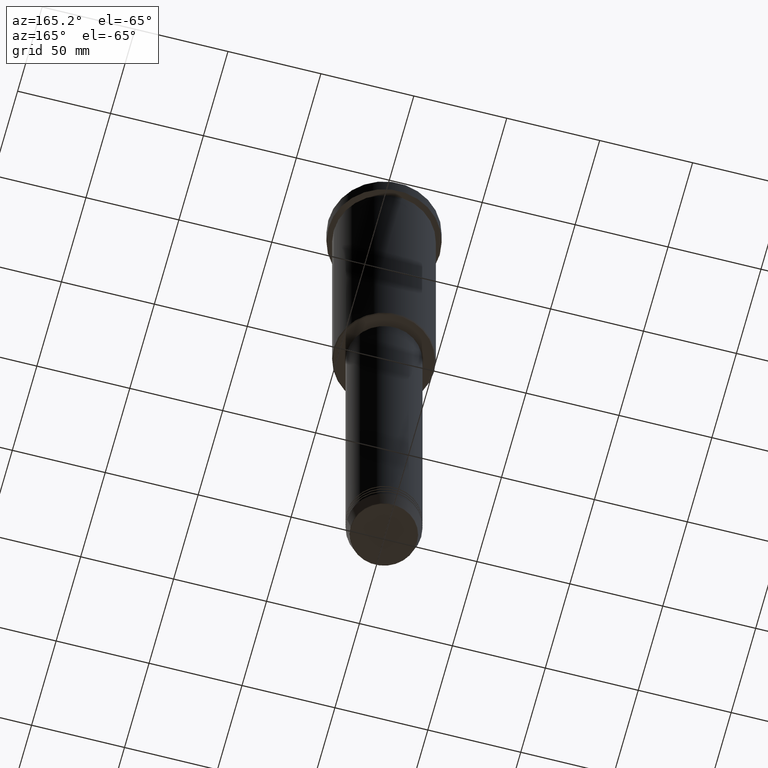
[diagram: clean part render]
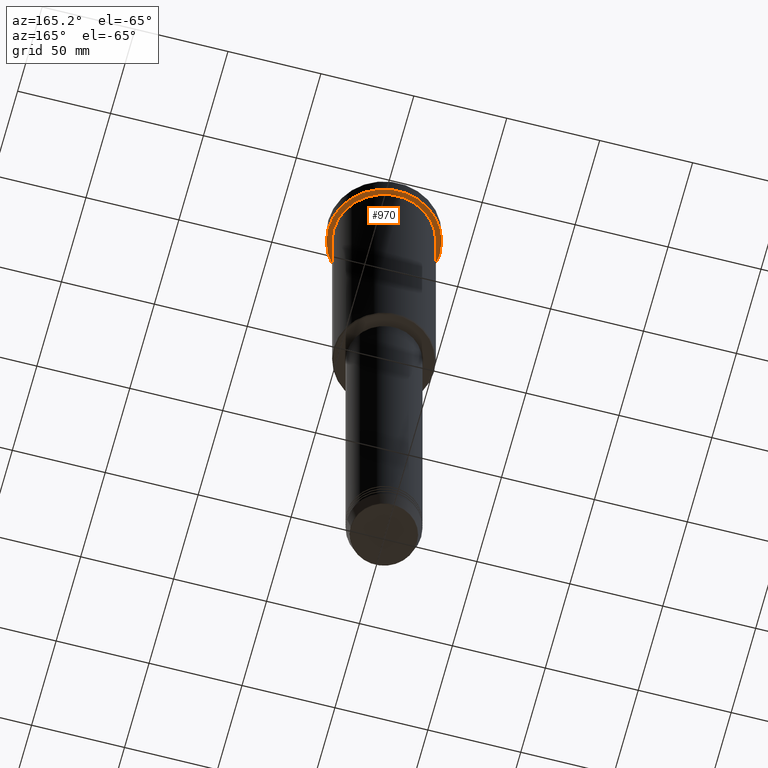
[diagram: same view with one face highlighted and labeled with its STEP entity id]
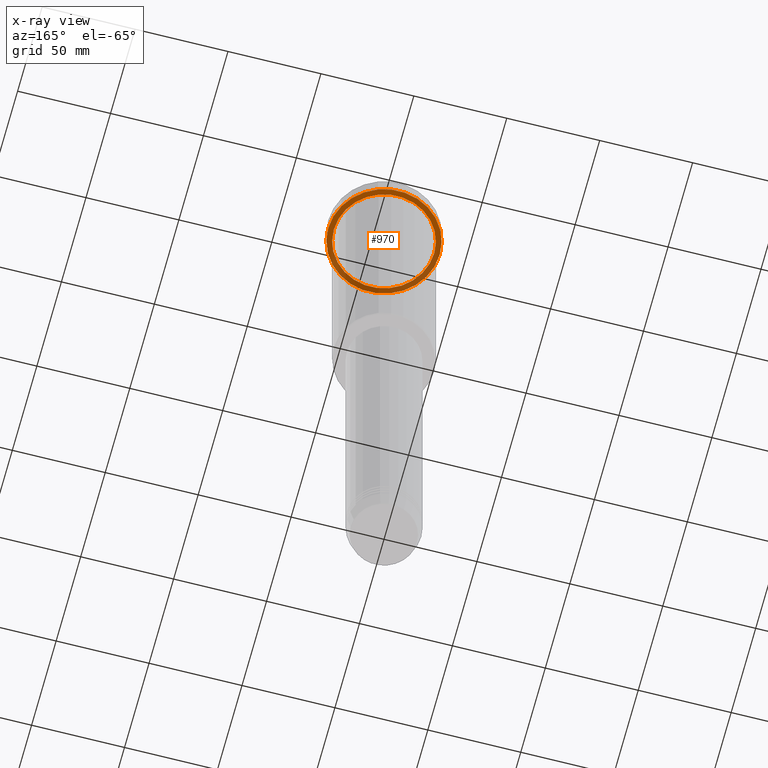
[diagram: x-ray of the same camera — body ghosted, the highlighted face saturated]
A machine part, auxiliary view. The second image highlights one B-rep face of the part: STEP entity #970.
The next image is the same camera in x-ray: the body ghosted, the highlighted face saturated — about 38% of this face is hidden behind the body in this view.
In plain terms, the highlighted planar face has unit normal (0, 0, -1).
Its self-contained STEP definition (entity closure, byte-faithful):
#28 = DIRECTION ( 'NONE',  ( 0.000000000000000000, 0.000000000000000000, -1.000000000000000000 ) ) ;
#70 = DIRECTION ( 'NONE',  ( 1.000000000000000000, 0.000000000000000000, 0.000000000000000000 ) ) ;
#144 = DIRECTION ( 'NONE',  ( -1.000000000000000000, 0.000000000000000000, -0.000000000000000000 ) ) ;
#181 = EDGE_CURVE ( 'NONE', #876, #859, #973, .T. ) ;
#184 = ORIENTED_EDGE ( 'NONE', *, *, #1032, .T. ) ;
#225 = ORIENTED_EDGE ( 'NONE', *, *, #974, .T. ) ;
#229 = PLANE ( 'NONE',  #1003 ) ;
#254 = DIRECTION ( 'NONE',  ( 1.000000000000000000, 0.000000000000000000, 0.000000000000000000 ) ) ;
#290 = AXIS2_PLACEMENT_3D ( 'NONE', #1050, #391, #318 ) ;
#318 = DIRECTION ( 'NONE',  ( -1.000000000000000000, 0.000000000000000000, 0.000000000000000000 ) ) ;
#327 = FACE_BOUND ( 'NONE', #604, .T. ) ;
#351 = DIRECTION ( 'NONE',  ( -0.000000000000000000, -0.000000000000000000, 1.000000000000000000 ) ) ;
#369 = CARTESIAN_POINT ( 'NONE',  ( 27.00000000000000355, 3.306546357697854128E-15, -9.999999999999992895 ) ) ;
#391 = DIRECTION ( 'NONE',  ( -0.000000000000000000, -0.000000000000000000, 1.000000000000000000 ) ) ;
#415 = DIRECTION ( 'NONE',  ( -1.000000000000000000, 0.000000000000000000, 0.000000000000000000 ) ) ;
#439 = VERTEX_POINT ( 'NONE', #797 ) ;
#444 = CARTESIAN_POINT ( 'NONE',  ( -30.00000000000000000, 3.673940397442059178E-15, -9.999999999999992895 ) ) ;
#445 = EDGE_LOOP ( 'NONE', ( #766, #544 ) ) ;
#450 = CARTESIAN_POINT ( 'NONE',  ( 30.00000000000000000, 0.000000000000000000, -9.999999999999992895 ) ) ;
#453 = AXIS2_PLACEMENT_3D ( 'NONE', #967, #1083, #254 ) ;
#493 = AXIS2_PLACEMENT_3D ( 'NONE', #506, #351, #415 ) ;
#506 = CARTESIAN_POINT ( 'NONE',  ( 0.000000000000000000, 0.000000000000000000, -9.999999999999992895 ) ) ;
#544 = ORIENTED_EDGE ( 'NONE', *, *, #721, .F. ) ;
#564 = VERTEX_POINT ( 'NONE', #369 ) ;
#577 = CARTESIAN_POINT ( 'NONE',  ( 0.000000000000000000, 30.00000000000000000, -9.999999999999992895 ) ) ;
#604 = EDGE_LOOP ( 'NONE', ( #225, #184 ) ) ;
#721 = EDGE_CURVE ( 'NONE', #859, #876, #849, .T. ) ;
#722 = AXIS2_PLACEMENT_3D ( 'NONE', #979, #889, #70 ) ;
#766 = ORIENTED_EDGE ( 'NONE', *, *, #181, .F. ) ;
#797 = CARTESIAN_POINT ( 'NONE',  ( -27.00000000000000355, 0.000000000000000000, -9.999999999999992895 ) ) ;
#840 = CIRCLE ( 'NONE', #493, 27.00000000000000355 ) ;
#849 = CIRCLE ( 'NONE', #722, 30.00000000000000000 ) ;
#859 = VERTEX_POINT ( 'NONE', #444 ) ;
#861 = FACE_OUTER_BOUND ( 'NONE', #445, .T. ) ;
#876 = VERTEX_POINT ( 'NONE', #450 ) ;
#887 = CIRCLE ( 'NONE', #290, 27.00000000000000355 ) ;
#889 = DIRECTION ( 'NONE',  ( -0.000000000000000000, -0.000000000000000000, 1.000000000000000000 ) ) ;
#967 = CARTESIAN_POINT ( 'NONE',  ( 0.000000000000000000, 0.000000000000000000, -9.999999999999992895 ) ) ;
#970 = ADVANCED_FACE ( 'NONE', ( #327, #861 ), #229, .T. ) ;
#973 = CIRCLE ( 'NONE', #453, 30.00000000000000000 ) ;
#974 = EDGE_CURVE ( 'NONE', #439, #564, #887, .T. ) ;
#979 = CARTESIAN_POINT ( 'NONE',  ( 0.000000000000000000, 0.000000000000000000, -9.999999999999992895 ) ) ;
#1003 = AXIS2_PLACEMENT_3D ( 'NONE', #577, #28, #144 ) ;
#1032 = EDGE_CURVE ( 'NONE', #564, #439, #840, .T. ) ;
#1050 = CARTESIAN_POINT ( 'NONE',  ( 0.000000000000000000, 0.000000000000000000, -9.999999999999992895 ) ) ;
#1083 = DIRECTION ( 'NONE',  ( -0.000000000000000000, -0.000000000000000000, 1.000000000000000000 ) ) ;